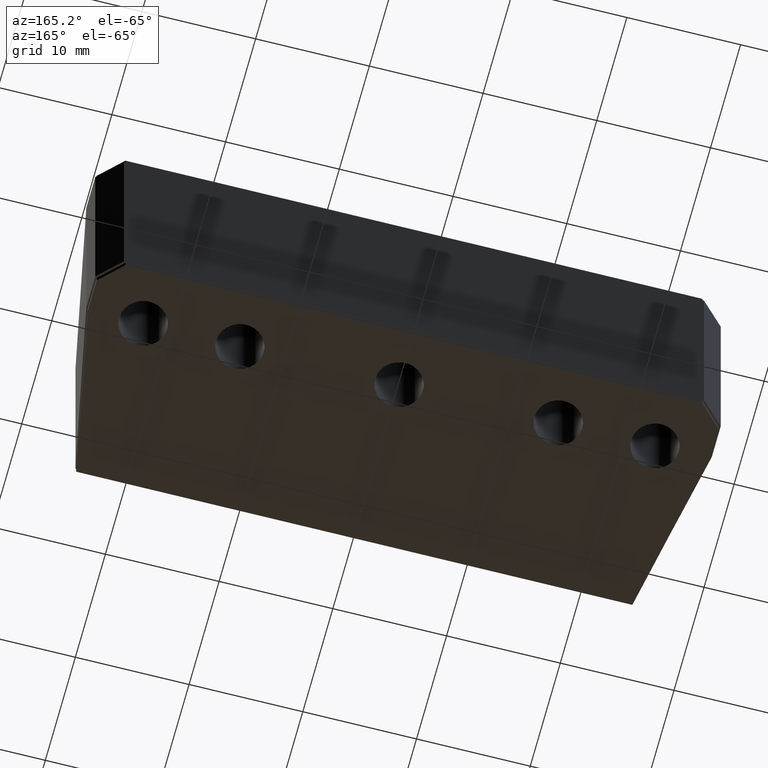
[diagram: clean part render]
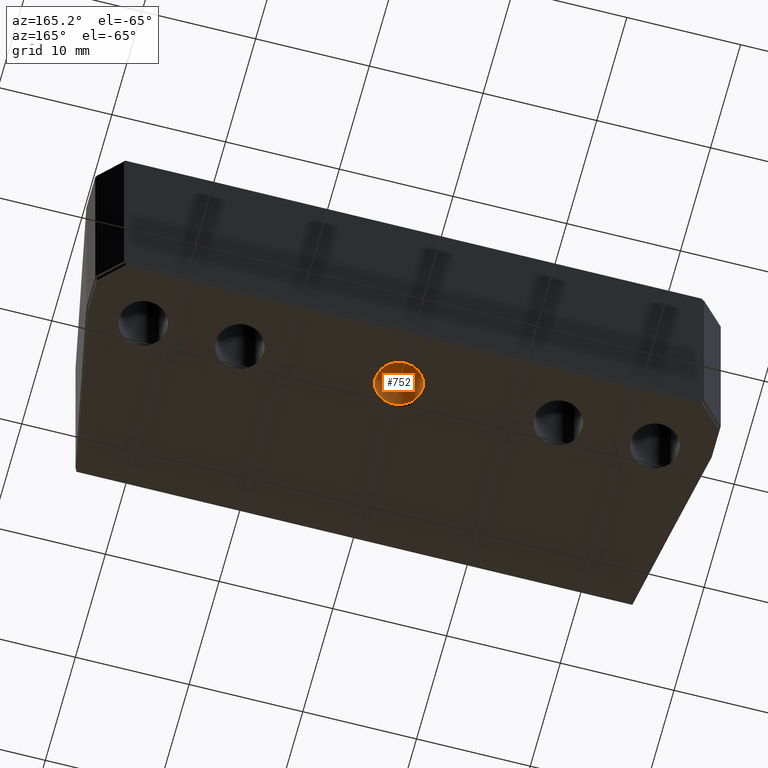
[diagram: same view with one face highlighted and labeled with its STEP entity id]
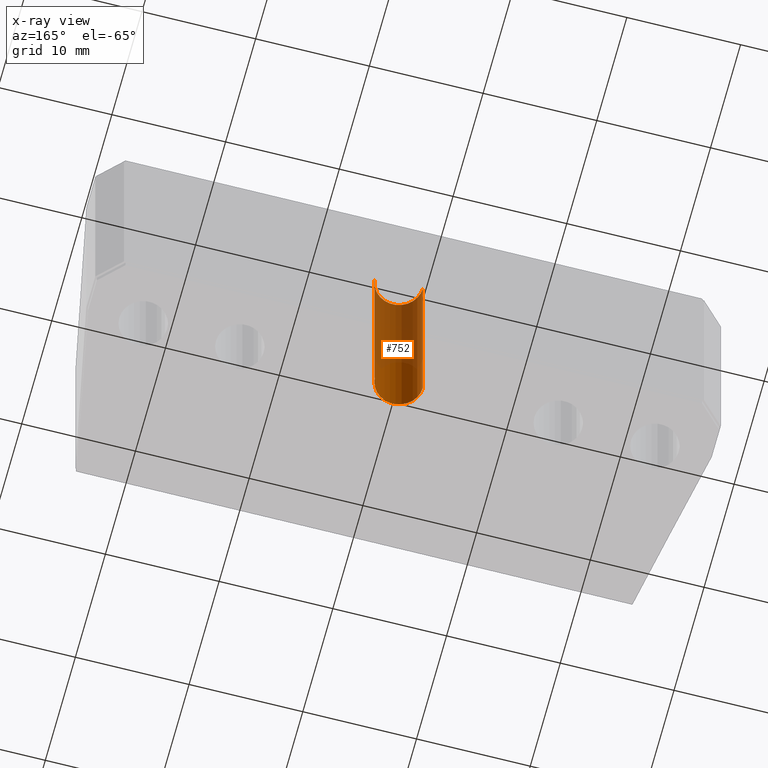
[diagram: x-ray of the same camera — body ghosted, the highlighted face saturated]
A machine part, auxiliary view. The second image highlights one B-rep face of the part: STEP entity #752.
The next image is the same camera in x-ray: the body ghosted, the highlighted face saturated — about 64% of this face is hidden behind the body in this view.
In plain terms, the highlighted cylindrical surface (edge-blend (fillet) strip) has radius 2.1 mm, axis along (-0, -0, 1).
Its self-contained STEP definition (entity closure, byte-faithful):
#635 = VERTEX_POINT ( 'NONE', #3967 ) ;
#636 = EDGE_CURVE ( 'NONE', #635, #641, #4018, .T. ) ;
#637 = ORIENTED_EDGE ( 'NONE', *, *, #638, .T. ) ;
#638 = EDGE_CURVE ( 'NONE', #761, #635, #3991, .T. ) ;
#639 = ORIENTED_EDGE ( 'NONE', *, *, #748, .F. ) ;
#640 = ORIENTED_EDGE ( 'NONE', *, *, #636, .T. ) ;
#641 = VERTEX_POINT ( 'NONE', #3986 ) ;
#748 = EDGE_CURVE ( 'NONE', #761, #756, #4465, .T. ) ;
#752 = ADVANCED_FACE ( 'NONE', ( #4366 ), #4431, .F. ) ;
#753 = EDGE_LOOP ( 'NONE', ( #637, #640, #754, #639 ) ) ;
#754 = ORIENTED_EDGE ( 'NONE', *, *, #755, .T. ) ;
#755 = EDGE_CURVE ( 'NONE', #641, #756, #4432, .T. ) ;
#756 = VERTEX_POINT ( 'NONE', #4423 ) ;
#761 = VERTEX_POINT ( 'NONE', #4416 ) ;
#3967 = CARTESIAN_POINT ( 'NONE',  ( -2.285185185185193200, 11.32716049382709200, -19.99999999997908200 ) ) ;
#3986 = CARTESIAN_POINT ( 'NONE',  ( -2.285185185185193200, 11.32716049382709200, 2.091903039680431700E-011 ) ) ;
#3987 = DIRECTION ( 'NONE',  ( -1.000000000000000000, 0.0000000000000000000, 0.0000000000000000000 ) ) ;
#3988 = DIRECTION ( 'NONE',  ( 1.848892746611746400E-032, 5.296998494942644200E-033, -1.000000000000000000 ) ) ;
#3989 = CARTESIAN_POINT ( 'NONE',  ( -0.1851851851851927200, 11.32716049382709200, -19.99999999997908200 ) ) ;
#3990 = AXIS2_PLACEMENT_3D ( 'NONE', #3989, #3988, #3987 ) ;
#3991 = CIRCLE ( 'NONE', #3990, 2.100000000000000100 ) ;
#4015 = DIRECTION ( 'NONE',  ( -1.848892746611747000E-032, -5.296998494942644900E-033, 1.000000000000000000 ) ) ;
#4016 = VECTOR ( 'NONE', #4015, 1000.000000000000000 ) ;
#4017 = CARTESIAN_POINT ( 'NONE',  ( -2.285185185185193200, 11.32716049382709200, -20.99999999997908500 ) ) ;
#4018 = LINE ( 'NONE', #4017, #4016 ) ;
#4366 = FACE_OUTER_BOUND ( 'NONE', #753, .T. ) ;
#4416 = CARTESIAN_POINT ( 'NONE',  ( 1.914814814814807600, 11.32716049382709200, -19.99999999997908200 ) ) ;
#4423 = CARTESIAN_POINT ( 'NONE',  ( 1.914814814814807600, 11.32716049382709200, 2.091903039680431700E-011 ) ) ;
#4424 = DIRECTION ( 'NONE',  ( 1.000000000000000000, 0.0000000000000000000, 0.0000000000000000000 ) ) ;
#4425 = DIRECTION ( 'NONE',  ( -1.848892746611746400E-032, -5.296998494942644200E-033, 1.000000000000000000 ) ) ;
#4426 = CARTESIAN_POINT ( 'NONE',  ( -0.1851851851851927200, 11.32716049382709200, 2.091903039680431700E-011 ) ) ;
#4427 = AXIS2_PLACEMENT_3D ( 'NONE', #4426, #4425, #4424 ) ;
#4428 = DIRECTION ( 'NONE',  ( 1.000000000000000000, 0.0000000000000000000, 0.0000000000000000000 ) ) ;
#4429 = DIRECTION ( 'NONE',  ( -1.848892746611747000E-032, -5.296998494942644900E-033, 1.000000000000000000 ) ) ;
#4430 = AXIS2_PLACEMENT_3D ( 'NONE', #4433, #4429, #4428 ) ;
#4431 = CYLINDRICAL_SURFACE ( 'NONE', #4430, 2.100000000000000100 ) ;
#4432 = CIRCLE ( 'NONE', #4427, 2.100000000000000100 ) ;
#4433 = CARTESIAN_POINT ( 'NONE',  ( -0.1851851851851927200, 11.32716049382709200, -20.99999999997908500 ) ) ;
#4462 = DIRECTION ( 'NONE',  ( -1.848892746611747000E-032, -5.296998494942644900E-033, 1.000000000000000000 ) ) ;
#4463 = VECTOR ( 'NONE', #4462, 1000.000000000000000 ) ;
#4464 = CARTESIAN_POINT ( 'NONE',  ( 1.914814814814807600, 11.32716049382709200, -20.99999999997908500 ) ) ;
#4465 = LINE ( 'NONE', #4464, #4463 ) ;